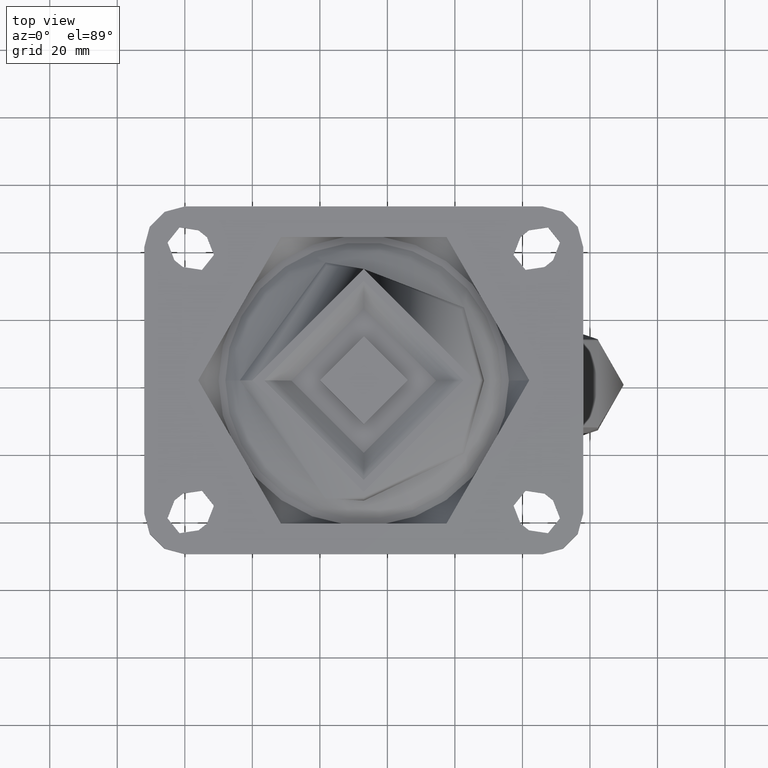
[diagram: clean part render]
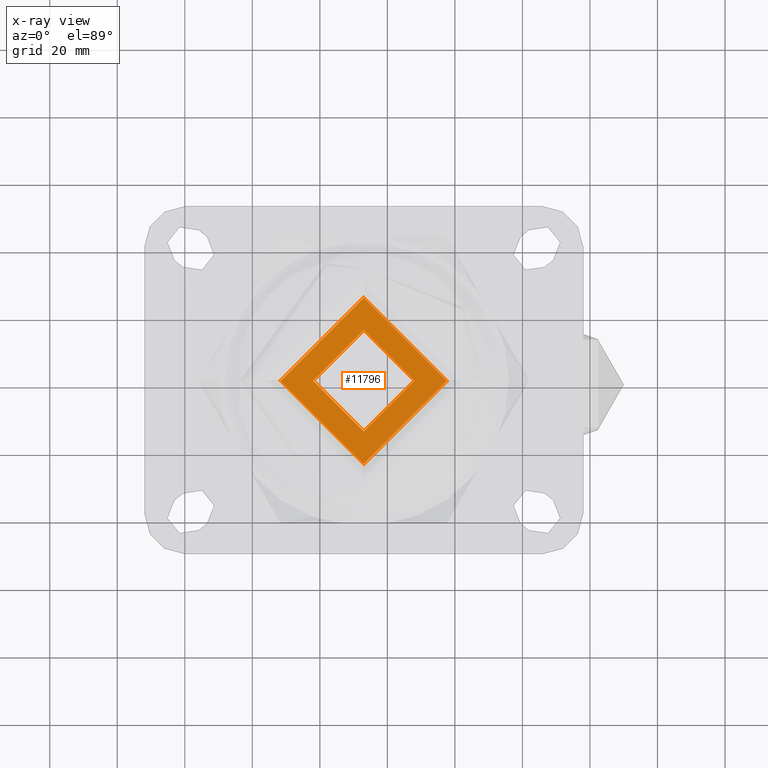
[diagram: x-ray — body ghosted, one internal face saturated and labeled with its STEP entity id]
A machine part, top view, then the same camera in x-ray: the body is ghosted and one INTERNAL B-rep face — a face not visible from any outside direction — is saturated and labeled: STEP entity #11796.
In plain terms, the highlighted planar face has unit normal (0, 0, 1).
Its self-contained STEP definition (entity closure, byte-faithful):
#439=FACE_BOUND('',#3900,.T.);
#601=PLANE('',#12756);
#3156=FACE_OUTER_BOUND('',#3899,.T.);
#3899=EDGE_LOOP('',(#8322));
#3900=EDGE_LOOP('',(#8323));
#4758=CIRCLE('',#12688,15.);
#4761=CIRCLE('',#12691,24.6400000000004);
#5221=VERTEX_POINT('',#16666);
#5223=VERTEX_POINT('',#16698);
#6398=EDGE_CURVE('',#5221,#5221,#4758,.T.);
#6401=EDGE_CURVE('',#5223,#5223,#4761,.T.);
#8322=ORIENTED_EDGE('',*,*,#6401,.F.);
#8323=ORIENTED_EDGE('',*,*,#6398,.T.);
#11796=ADVANCED_FACE('',(#3156,#439),#601,.T.);
#12688=AXIS2_PLACEMENT_3D('',#16668,#13779,#13780);
#12691=AXIS2_PLACEMENT_3D('',#16700,#13785,#13786);
#12756=AXIS2_PLACEMENT_3D('',#17013,#13940,#13941);
#13779=DIRECTION('center_axis',(0.,0.,-1.));
#13780=DIRECTION('ref_axis',(-1.,0.,0.));
#13785=DIRECTION('center_axis',(0.,0.,-1.));
#13786=DIRECTION('ref_axis',(-1.,0.,0.));
#13940=DIRECTION('center_axis',(0.,0.,1.));
#13941=DIRECTION('ref_axis',(1.,0.,0.));
#16666=CARTESIAN_POINT('',(-66.096693940411,195.278189306354,-9.6312605821945));
#16668=CARTESIAN_POINT('Origin',(-81.096693940411,195.278189306354,-9.6312605821945));
#16698=CARTESIAN_POINT('',(-56.4566939404106,195.278189306357,-9.63126058219462));
#16700=CARTESIAN_POINT('Origin',(-81.096693940411,195.278189306354,-9.63126058219462));
#17013=CARTESIAN_POINT('Origin',(-105.736693940411,195.278189306354,-9.63126058219456));